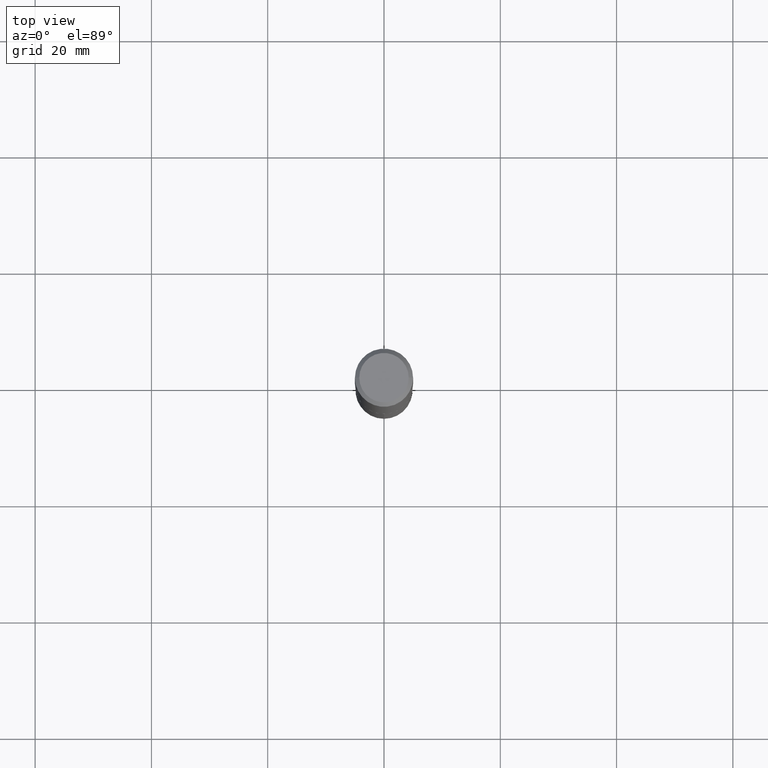
[diagram: clean part render]
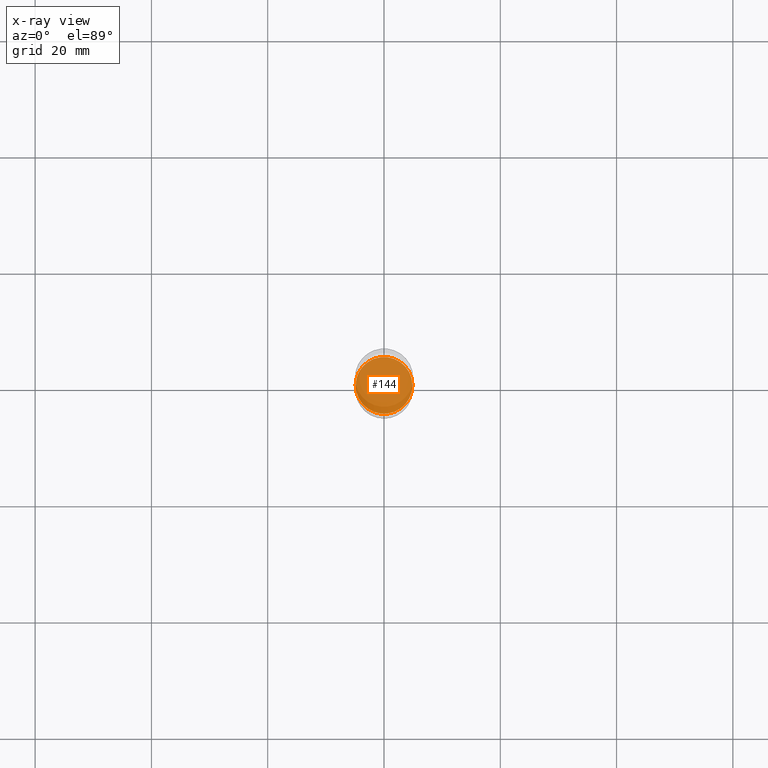
[diagram: x-ray — body ghosted, one internal face saturated and labeled with its STEP entity id]
A machine part, top view, then the same camera in x-ray: the body is ghosted and one INTERNAL B-rep face — a face not visible from any outside direction — is saturated and labeled: STEP entity #144.
In plain terms, the highlighted planar face has unit normal (-0, 0, 1).
Its self-contained STEP definition (entity closure, byte-faithful):
#21 = VERTEX_POINT ( 'NONE', #295 ) ;
#22 = CARTESIAN_POINT ( 'NONE',  ( 7.439849749057039047E-29, -1.062213367716249950E-14, -3.042299999999999560 ) ) ;
#53 = PLANE ( 'NONE',  #76 ) ;
#54 = CARTESIAN_POINT ( 'NONE',  ( 7.439849749057039047E-29, -1.062213367716249950E-14, -3.042299999999999560 ) ) ;
#55 = EDGE_CURVE ( 'NONE', #98, #21, #190, .T. ) ;
#60 = CIRCLE ( 'NONE', #327, 0.1923999999999999877 ) ;
#76 = AXIS2_PLACEMENT_3D ( 'NONE', #22, #449, #209 ) ;
#98 = VERTEX_POINT ( 'NONE', #270 ) ;
#126 = DIRECTION ( 'NONE',  ( -2.445468806185136597E-29, 3.491481338843145583E-15, 1.000000000000000000 ) ) ;
#144 = ADVANCED_FACE ( 'NONE', ( #348 ), #53, .F. ) ;
#158 = DIRECTION ( 'NONE',  ( 1.000000000000000000, -6.982962677686266711E-15, 0.000000000000000000 ) ) ;
#190 = CIRCLE ( 'NONE', #195, 0.1923999999999999877 ) ;
#195 = AXIS2_PLACEMENT_3D ( 'NONE', #54, #387, #158 ) ;
#209 = DIRECTION ( 'NONE',  ( 1.000000000000000000, -6.982962677686265922E-15, 4.876176775795935793E-29 ) ) ;
#260 = EDGE_LOOP ( 'NONE', ( #380, #262 ) ) ;
#262 = ORIENTED_EDGE ( 'NONE', *, *, #55, .F. ) ;
#270 = CARTESIAN_POINT ( 'NONE',  ( -0.1923999999999999877, -9.252400226385957009E-15, -3.042299999999999560 ) ) ;
#271 = DIRECTION ( 'NONE',  ( 1.000000000000000000, -6.982962677686266711E-15, 0.000000000000000000 ) ) ;
#278 = EDGE_CURVE ( 'NONE', #21, #98, #60, .T. ) ;
#295 = CARTESIAN_POINT ( 'NONE',  ( 0.1923999999999999877, -1.196565569634933756E-14, -3.042299999999999560 ) ) ;
#308 = CARTESIAN_POINT ( 'NONE',  ( 7.439849749057039047E-29, -1.062213367716249950E-14, -3.042299999999999560 ) ) ;
#327 = AXIS2_PLACEMENT_3D ( 'NONE', #308, #126, #271 ) ;
#348 = FACE_OUTER_BOUND ( 'NONE', #260, .T. ) ;
#380 = ORIENTED_EDGE ( 'NONE', *, *, #278, .F. ) ;
#387 = DIRECTION ( 'NONE',  ( -2.445468806185136597E-29, 3.491481338843145583E-15, 1.000000000000000000 ) ) ;
#449 = DIRECTION ( 'NONE',  ( -2.438088387897960049E-29, 3.491481338843145188E-15, 1.000000000000000000 ) ) ;